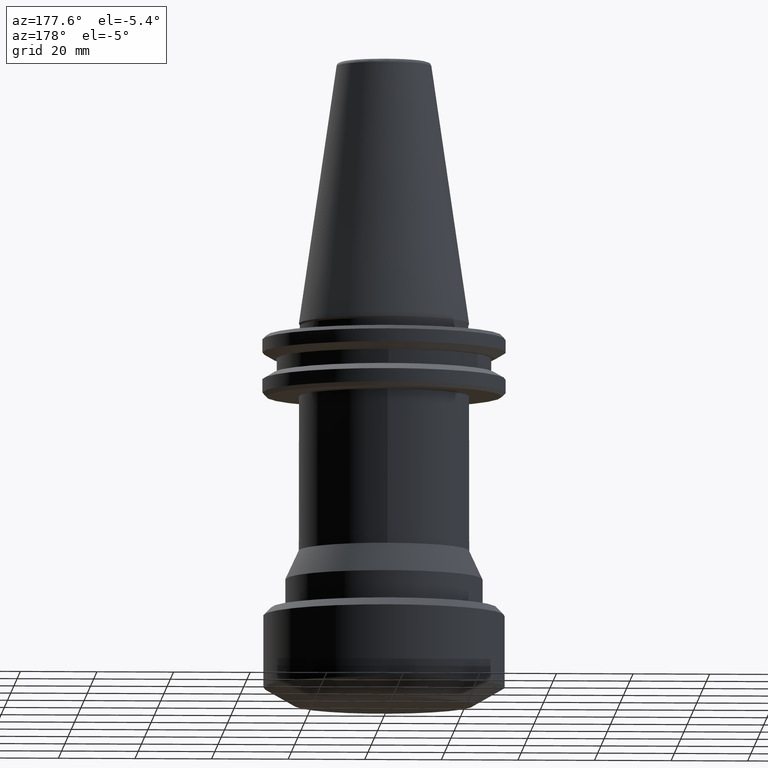
[diagram: clean part render]
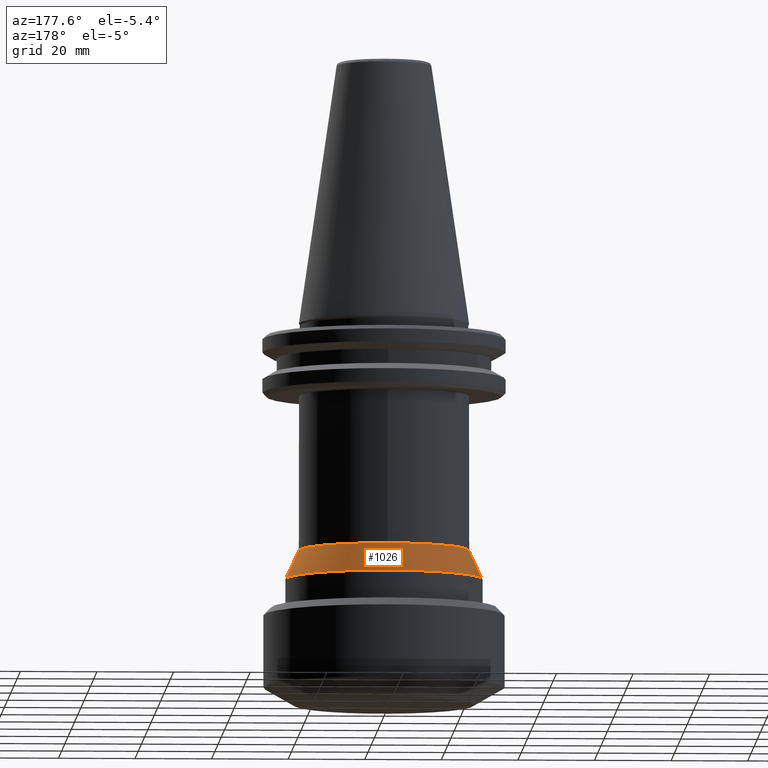
[diagram: same view with one face highlighted and labeled with its STEP entity id]
A machine part, auxiliary view. The second image highlights one B-rep face of the part: STEP entity #1026.
In plain terms, the highlighted conical surface has half-angle 25 deg.
Its self-contained STEP definition (entity closure, byte-faithful):
#117 = CARTESIAN_POINT ( 'NONE',  ( 25.75000000000000400, 3.153465507804434800E-015, -67.00000000000000000 ) ) ;
#154 = DIRECTION ( 'NONE',  ( -1.000000000000000000, 0.0000000000000000000, 0.0000000000000000000 ) ) ;
#281 = EDGE_CURVE ( 'NONE', #1607, #970, #722, .T. ) ;
#296 = VERTEX_POINT ( 'NONE', #1301 ) ;
#370 = EDGE_LOOP ( 'NONE', ( #1377, #1342, #937, #983, #1212 ) ) ;
#559 = DIRECTION ( 'NONE',  ( -0.4226182617306888400, 0.0000000000000000000, -0.9063077870413180900 ) ) ;
#592 = AXIS2_PLACEMENT_3D ( 'NONE', #614, #1632, #771 ) ;
#614 = CARTESIAN_POINT ( 'NONE',  ( 0.0000000000000000000, 0.0000000000000000000, -59.49422577800009300 ) ) ;
#643 = VECTOR ( 'NONE', #559, 999.9999999999998900 ) ;
#684 = LINE ( 'NONE', #1438, #643 ) ;
#687 = CIRCLE ( 'NONE', #1821, 25.75000000000000400 ) ;
#710 = DIRECTION ( 'NONE',  ( -0.0000000000000000000, -0.0000000000000000000, 1.000000000000000000 ) ) ;
#722 = CIRCLE ( 'NONE', #1425, 22.25000000000000000 ) ;
#737 = VECTOR ( 'NONE', #1179, 999.9999999999998900 ) ;
#738 = FACE_OUTER_BOUND ( 'NONE', #370, .T. ) ;
#771 = DIRECTION ( 'NONE',  ( 1.000000000000000000, 0.0000000000000000000, 0.0000000000000000000 ) ) ;
#772 = VERTEX_POINT ( 'NONE', #1172 ) ;
#786 = EDGE_CURVE ( 'NONE', #1607, #296, #1719, .T. ) ;
#790 = CIRCLE ( 'NONE', #592, 22.25000000000000000 ) ;
#794 = AXIS2_PLACEMENT_3D ( 'NONE', #1076, #925, #154 ) ;
#851 = CARTESIAN_POINT ( 'NONE',  ( 2.724839128102860600E-015, 22.25000000000000000, -59.49422577800009300 ) ) ;
#925 = DIRECTION ( 'NONE',  ( 0.0000000000000000000, 0.0000000000000000000, -1.000000000000000000 ) ) ;
#937 = ORIENTED_EDGE ( 'NONE', *, *, #1380, .T. ) ;
#970 = VERTEX_POINT ( 'NONE', #851 ) ;
#983 = ORIENTED_EDGE ( 'NONE', *, *, #1399, .F. ) ;
#1015 = EDGE_CURVE ( 'NONE', #970, #1232, #790, .T. ) ;
#1026 = ADVANCED_FACE ( 'NONE', ( #738 ), #1513, .T. ) ;
#1076 = CARTESIAN_POINT ( 'NONE',  ( 0.0000000000000000000, 0.0000000000000000000, -67.00000000000000000 ) ) ;
#1124 = CARTESIAN_POINT ( 'NONE',  ( -22.25000000000000000, 0.0000000000000000000, -59.49422577800009300 ) ) ;
#1172 = CARTESIAN_POINT ( 'NONE',  ( -25.75000000000000400, 0.0000000000000000000, -67.00000000000000000 ) ) ;
#1179 = DIRECTION ( 'NONE',  ( 0.4226182617306888400, 5.175581014897064200E-017, -0.9063077870413180900 ) ) ;
#1212 = ORIENTED_EDGE ( 'NONE', *, *, #1015, .F. ) ;
#1232 = VERTEX_POINT ( 'NONE', #1124 ) ;
#1301 = CARTESIAN_POINT ( 'NONE',  ( 25.75000000000000400, 3.153465507804434800E-015, -67.00000000000000000 ) ) ;
#1317 = DIRECTION ( 'NONE',  ( -0.0000000000000000000, -0.0000000000000000000, 1.000000000000000000 ) ) ;
#1342 = ORIENTED_EDGE ( 'NONE', *, *, #786, .T. ) ;
#1377 = ORIENTED_EDGE ( 'NONE', *, *, #281, .F. ) ;
#1380 = EDGE_CURVE ( 'NONE', #296, #772, #687, .T. ) ;
#1399 = EDGE_CURVE ( 'NONE', #1232, #772, #684, .T. ) ;
#1425 = AXIS2_PLACEMENT_3D ( 'NONE', #1734, #1317, #1927 ) ;
#1438 = CARTESIAN_POINT ( 'NONE',  ( -25.75000000000000400, 0.0000000000000000000, -67.00000000000000000 ) ) ;
#1513 = CONICAL_SURFACE ( 'NONE', #794, 25.75000000000000400, 0.4363323129875368900 ) ;
#1582 = CARTESIAN_POINT ( 'NONE',  ( 0.0000000000000000000, 0.0000000000000000000, -67.00000000000000000 ) ) ;
#1596 = CARTESIAN_POINT ( 'NONE',  ( 22.25000000000000000, 2.939152317953647900E-015, -59.49422577800009300 ) ) ;
#1607 = VERTEX_POINT ( 'NONE', #1596 ) ;
#1632 = DIRECTION ( 'NONE',  ( -0.0000000000000000000, -0.0000000000000000000, 1.000000000000000000 ) ) ;
#1719 = LINE ( 'NONE', #117, #737 ) ;
#1732 = DIRECTION ( 'NONE',  ( 1.000000000000000000, 0.0000000000000000000, 0.0000000000000000000 ) ) ;
#1734 = CARTESIAN_POINT ( 'NONE',  ( 0.0000000000000000000, 0.0000000000000000000, -59.49422577800009300 ) ) ;
#1821 = AXIS2_PLACEMENT_3D ( 'NONE', #1582, #710, #1732 ) ;
#1927 = DIRECTION ( 'NONE',  ( 1.000000000000000000, 0.0000000000000000000, 0.0000000000000000000 ) ) ;